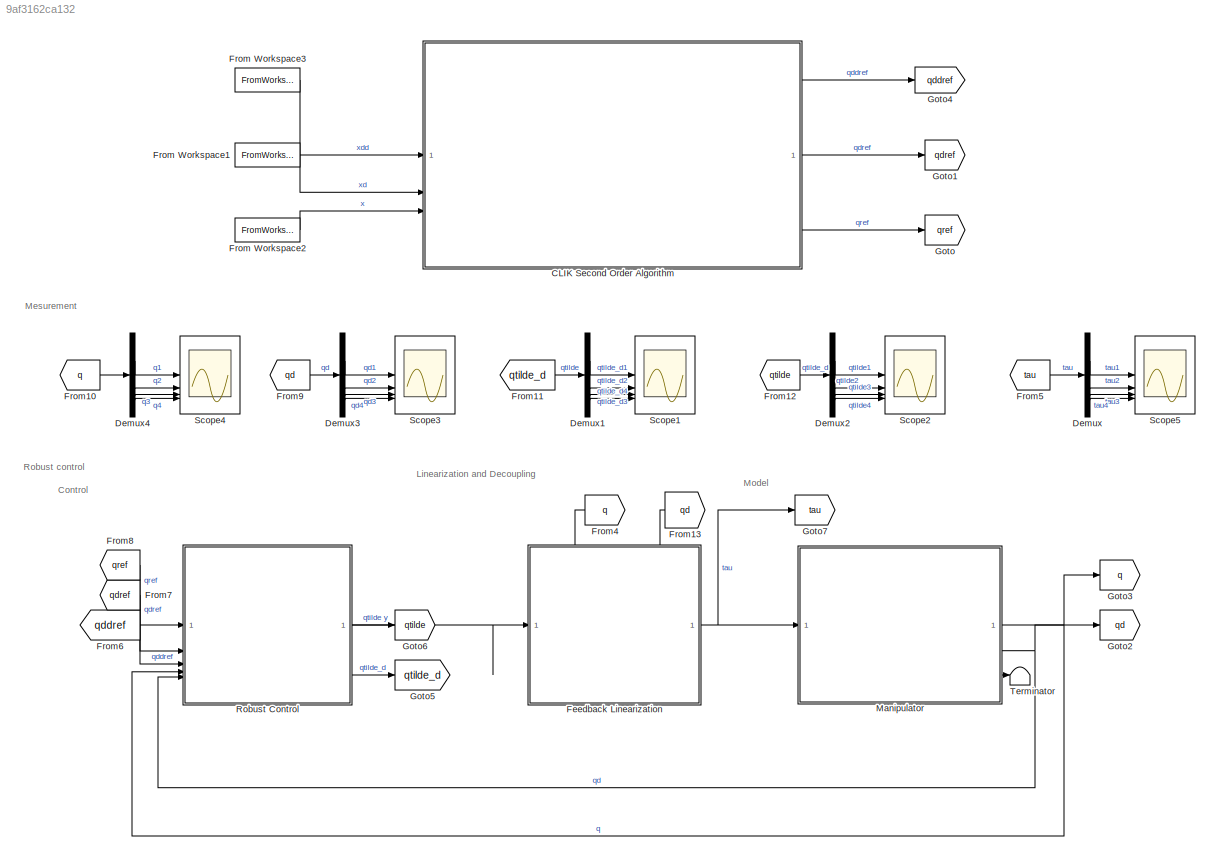
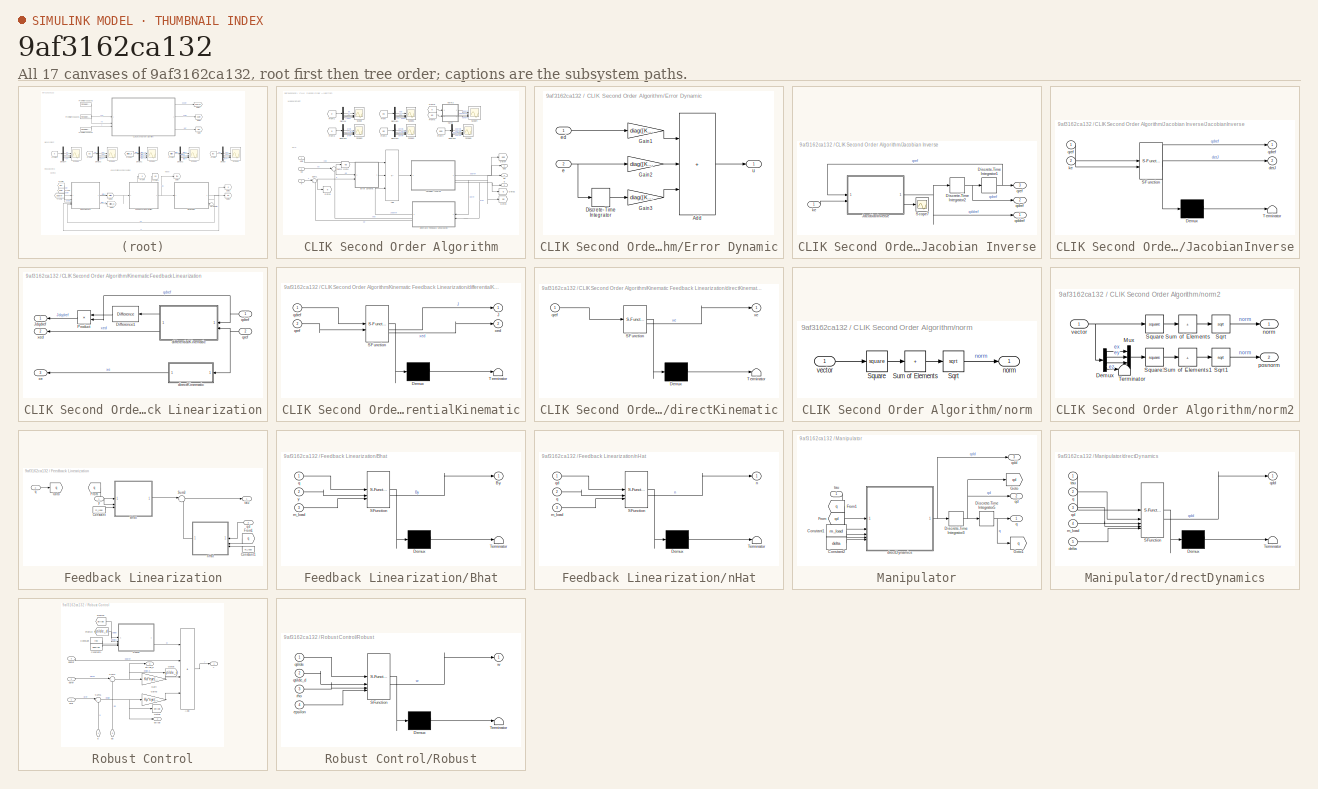
[diagram: thumbnail index - all 17 canvases of the model, root first then tree order]
MODEL slx_9af3162ca132
KIND model
CONFIG AbsTol = auto
CONFIG EnableMultiTasking = off
CONFIG FixedStep = auto
CONFIG MaxStep = auto
CONFIG MinStep = auto
CONFIG RelTol = 1e-3
CONFIG SampleTimeConstraint = Unconstrained
CONFIG SolverName = VariableStepAuto
CONFIG StartTime = 0.0
CONFIG StopTime = time(end)
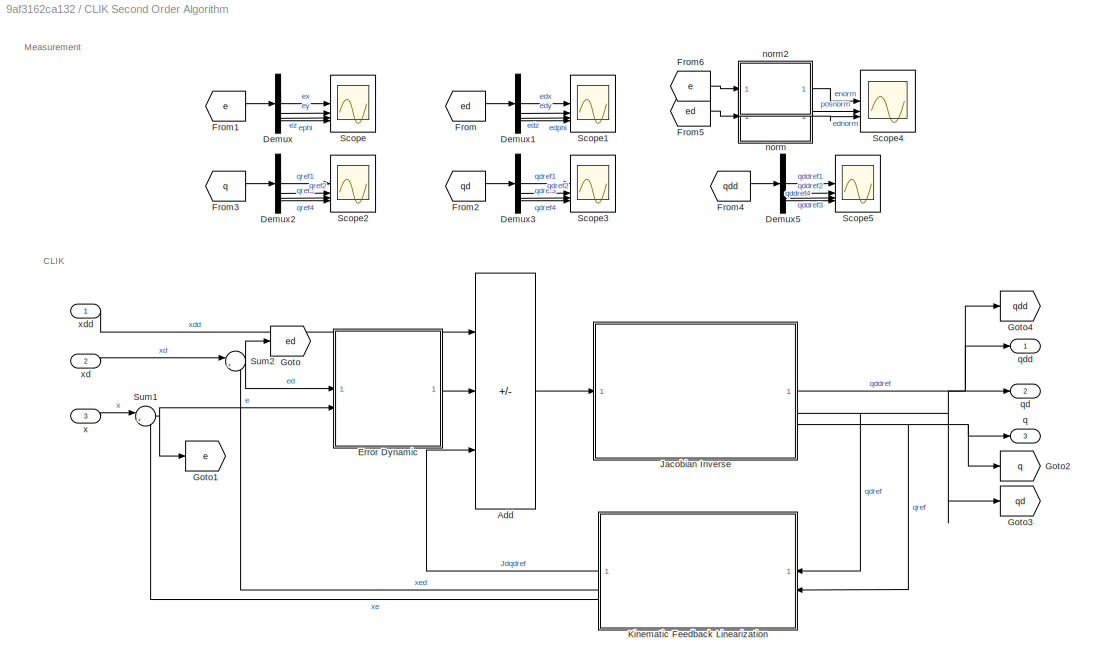
BLOCK [SubSystem] CLIK Second Order Algorithm
BLOCK [Sum] CLIK Second Order Algorithm/Add
  IconShape = rectangular
  Inputs = ++-
BLOCK [Demux] CLIK Second Order Algorithm/Demux
BLOCK [Demux] CLIK Second Order Algorithm/Demux1
BLOCK [Demux] CLIK Second Order Algorithm/Demux2
BLOCK [Demux] CLIK Second Order Algorithm/Demux3
BLOCK [Demux] CLIK Second Order Algorithm/Demux5
BLOCK [SubSystem] CLIK Second Order Algorithm/Error Dynamic
BLOCK [Sum] CLIK Second Order Algorithm/Error Dynamic/Add
  IconShape = rectangular
  Inputs = +++
BLOCK [DiscreteIntegrator] CLIK Second Order Algorithm/Error Dynamic/Discrete-Time Integrator
  ICPrevOutput = DiscIntNeverNeededParam
  ICPrevScaledInput = DiscIntNeverNeededParam
  InitialConditionSetting = Auto
  SampleTime = 0.001
BLOCK [Gain] CLIK Second Order Algorithm/Error Dynamic/Gain1
  Gain = diag([Kd1, Kd2, Kd3, Kd4])
  Multiplication = Matrix(K*u)
BLOCK [Gain] CLIK Second Order Algorithm/Error Dynamic/Gain2
  Gain = diag([Kp1, Kp2, Kp3, Kp4])
  Multiplication = Matrix(K*u)
BLOCK [Gain] CLIK Second Order Algorithm/Error Dynamic/Gain3
  Gain = diag([Ki, Ki, Ki, Ki])
  Multiplication = Matrix(K*u)
BLOCK [Inport] CLIK Second Order Algorithm/Error Dynamic/e
  Port = 2
BLOCK [Inport] CLIK Second Order Algorithm/Error Dynamic/ed
BLOCK [Outport] CLIK Second Order Algorithm/Error Dynamic/u
BLOCK [From] CLIK Second Order Algorithm/From
  GotoTag = ed
BLOCK [From] CLIK Second Order Algorithm/From1
  GotoTag = e
BLOCK [From] CLIK Second Order Algorithm/From2
  GotoTag = qd
BLOCK [From] CLIK Second Order Algorithm/From3
  GotoTag = q
BLOCK [From] CLIK Second Order Algorithm/From4
  GotoTag = qdd
BLOCK [From] CLIK Second Order Algorithm/From5
  GotoTag = ed
BLOCK [From] CLIK Second Order Algorithm/From6
  GotoTag = e
BLOCK [Goto] CLIK Second Order Algorithm/Goto
  GotoTag = ed
BLOCK [Goto] CLIK Second Order Algorithm/Goto1
  GotoTag = e
BLOCK [Goto] CLIK Second Order Algorithm/Goto2
  GotoTag = q
BLOCK [Goto] CLIK Second Order Algorithm/Goto3
  GotoTag = qd
BLOCK [Goto] CLIK Second Order Algorithm/Goto4
  GotoTag = qdd
BLOCK [SubSystem] CLIK Second Order Algorithm/Jacobian Inverse
BLOCK [DiscreteIntegrator] CLIK Second Order Algorithm/Jacobian Inverse/Discrete-Time Integrator1
  ICPrevOutput = DiscIntNeverNeededParam
  ICPrevScaledInput = DiscIntNeverNeededParam
  InitialCondition = [-1.5706; 0.7851; 0.5000; -0.7855]
  InitialConditionSetting = Auto
  SampleTime = 0.001
BLOCK [DiscreteIntegrator] CLIK Second Order Algorithm/Jacobian Inverse/Discrete-Time Integrator2
  ICPrevOutput = DiscIntNeverNeededParam
  ICPrevScaledInput = DiscIntNeverNeededParam
  InitialCondition = [0; 0; 0; 0]
  InitialConditionSetting = Auto
  SampleTime = 0.001
BLOCK [SubSystem] CLIK Second Order Algorithm/Jacobian Inverse/JacobianInverse
  ErrorFcn = Stateflow.Translate.translate
  PermitHierarchicalResolution = ExplicitOnly
  SFBlockType = MATLAB Function
  TreatAsAtomicUnit = on
BLOCK [Demux] CLIK Second Order Algorithm/Jacobian Inverse/JacobianInverse/ Demux 
  Outputs = 1
BLOCK [S-Function] CLIK Second Order Algorithm/Jacobian Inverse/JacobianInverse/ SFunction 
  EnableBusSupport = on
  FunctionName = sf_sfun
  PortCounts = [2 3]
  SFcnIsStateOwnerBlock = off
  SFunctionDeploymentMode = off
  Tag = Stateflow S-Function 5
BLOCK [Terminator] CLIK Second Order Algorithm/Jacobian Inverse/JacobianInverse/ Terminator 
BLOCK [Outport] CLIK Second Order Algorithm/Jacobian Inverse/JacobianInverse/detJ
  Port = 2
BLOCK [Inport] CLIK Second Order Algorithm/Jacobian Inverse/JacobianInverse/ke
  Port = 2
BLOCK [Outport] CLIK Second Order Algorithm/Jacobian Inverse/JacobianInverse/qdref
BLOCK [Inport] CLIK Second Order Algorithm/Jacobian Inverse/JacobianInverse/qref
BLOCK [Scope] CLIK Second Order Algorithm/Jacobian Inverse/Scope7
  Floating = off
  NumInputPorts = 1
  ScopeSpecificationString = Simulink.scopes.TimeScopeBlockCfg('CurrentConfiguration', extmgr.ConfigurationSet(extmgr.Configuration('Core','General UI',true),extmgr.Configuration('Core','Source UI',true),extmgr.Configuration('Sources','WiredSimulink',true,'DataLoggingVariableName','ScopeData1'),extmgr.Configuration('Visuals','Time Domain',true,'SerializedDisplays',{struct('MinYLimReal','0.10918','MaxYLimReal','0.26565','YLabe...<+1412ch>
BLOCK [Inport] CLIK Second Order Algorithm/Jacobian Inverse/ke
BLOCK [Outport] CLIK Second Order Algorithm/Jacobian Inverse/qddref
BLOCK [Outport] CLIK Second Order Algorithm/Jacobian Inverse/qdref
  Port = 2
BLOCK [Outport] CLIK Second Order Algorithm/Jacobian Inverse/qref
  Port = 3
BLOCK [SubSystem] CLIK Second Order Algorithm/Kinematic Feedback Linearization
BLOCK [Reference] CLIK Second Order Algorithm/Kinematic Feedback Linearization/Difference1  REF=simulink/Discrete/Difference
  NameLocation = top
  SourceBlock = simulink/Discrete/Difference
  SourceType = Difference
BLOCK [Outport] CLIK Second Order Algorithm/Kinematic Feedback Linearization/Jdqdref
  NameLocation = top
BLOCK [Product] CLIK Second Order Algorithm/Kinematic Feedback Linearization/Product
  Multiplication = Matrix(*)
  NameLocation = top
BLOCK [SubSystem] CLIK Second Order Algorithm/Kinematic Feedback Linearization/differentialKinematic
  ErrorFcn = Stateflow.Translate.translate
  PermitHierarchicalResolution = ExplicitOnly
  SFBlockType = MATLAB Function
  TreatAsAtomicUnit = on
BLOCK [Demux] CLIK Second Order Algorithm/Kinematic Feedback Linearization/differentialKinematic/ Demux 
  Outputs = 1
BLOCK [S-Function] CLIK Second Order Algorithm/Kinematic Feedback Linearization/differentialKinematic/ SFunction 
  EnableBusSupport = on
  FunctionName = sf_sfun
  PortCounts = [2 3]
  SFcnIsStateOwnerBlock = off
  SFunctionDeploymentMode = off
  Tag = Stateflow S-Function 1
BLOCK [Terminator] CLIK Second Order Algorithm/Kinematic Feedback Linearization/differentialKinematic/ Terminator 
BLOCK [Outport] CLIK Second Order Algorithm/Kinematic Feedback Linearization/differentialKinematic/J
BLOCK [Inport] CLIK Second Order Algorithm/Kinematic Feedback Linearization/differentialKinematic/qdref
BLOCK [Inport] CLIK Second Order Algorithm/Kinematic Feedback Linearization/differentialKinematic/qref
  Port = 2
BLOCK [Outport] CLIK Second Order Algorithm/Kinematic Feedback Linearization/differentialKinematic/xed
  Port = 2
BLOCK [SubSystem] CLIK Second Order Algorithm/Kinematic Feedback Linearization/directKinematic
  ErrorFcn = Stateflow.Translate.translate
  NameLocation = top
  PermitHierarchicalResolution = ExplicitOnly
  SFBlockType = MATLAB Function
  TreatAsAtomicUnit = on
BLOCK [Demux] CLIK Second Order Algorithm/Kinematic Feedback Linearization/directKinematic/ Demux 
  Outputs = 1
BLOCK [S-Function] CLIK Second Order Algorithm/Kinematic Feedback Linearization/directKinematic/ SFunction 
  EnableBusSupport = on
  FunctionName = sf_sfun
  PortCounts = [1 2]
  SFcnIsStateOwnerBlock = off
  SFunctionDeploymentMode = off
  Tag = Stateflow S-Function 2
BLOCK [Terminator] CLIK Second Order Algorithm/Kinematic Feedback Linearization/directKinematic/ Terminator 
BLOCK [Inport] CLIK Second Order Algorithm/Kinematic Feedback Linearization/directKinematic/qref
BLOCK [Outport] CLIK Second Order Algorithm/Kinematic Feedback Linearization/directKinematic/xe
BLOCK [Inport] CLIK Second Order Algorithm/Kinematic Feedback Linearization/qdref
BLOCK [Inport] CLIK Second Order Algorithm/Kinematic Feedback Linearization/qref
  Port = 2
BLOCK [Outport] CLIK Second Order Algorithm/Kinematic Feedback Linearization/xe
  NameLocation = top
  Port = 3
BLOCK [Outport] CLIK Second Order Algorithm/Kinematic Feedback Linearization/xed
  NameLocation = top
  Port = 2
BLOCK [Scope] CLIK Second Order Algorithm/Scope
  Floating = off
  NumInputPorts = 4
  ScopeSpecificationString = Simulink.scopes.TimeScopeBlockCfg('CurrentConfiguration', extmgr.ConfigurationSet(extmgr.Configuration('Core','General UI',true),extmgr.Configuration('Core','Source UI',true),extmgr.Configuration('Sources','WiredSimulink',true,'DataLoggingVariableName','ScopeData2'),extmgr.Configuration('Visuals','Time Domain',true,'SerializedDisplays',{struct('MinYLimReal','-0.00084','MaxYLimReal','0.00036','YLab...<+3434ch>
BLOCK [Scope] CLIK Second Order Algorithm/Scope1
  Floating = off
  NumInputPorts = 4
  ScopeSpecificationString = Simulink.scopes.TimeScopeBlockCfg('CurrentConfiguration', extmgr.ConfigurationSet(extmgr.Configuration('Core','General UI',true),extmgr.Configuration('Core','Source UI',true),extmgr.Configuration('Sources','WiredSimulink',true,'DataLoggingVariableName','ScopeData3'),extmgr.Configuration('Visuals','Time Domain',true,'SerializedDisplays',{struct('MinYLimReal','-0.00136','MaxYLimReal','0.00163','YLab...<+3434ch>
BLOCK [Scope] CLIK Second Order Algorithm/Scope2
  Floating = off
  NumInputPorts = 4
  ScopeSpecificationString = Simulink.scopes.TimeScopeBlockCfg('CurrentConfiguration', extmgr.ConfigurationSet(extmgr.Configuration('Core','General UI',true),extmgr.Configuration('Core','Source UI',true),extmgr.Configuration('Sources','WiredSimulink',true,'DataLoggingVariableName','ScopeData4'),extmgr.Configuration('Visuals','Time Domain',true,'SerializedDisplays',{struct('MinYLimReal','-2.45485','MaxYLimReal','6.3812','YLabe...<+1413ch>
BLOCK [Scope] CLIK Second Order Algorithm/Scope3
  Floating = off
  NumInputPorts = 4
  ScopeSpecificationString = Simulink.scopes.TimeScopeBlockCfg('CurrentConfiguration', extmgr.ConfigurationSet(extmgr.Configuration('Core','General UI',true),extmgr.Configuration('Core','Source UI',true),extmgr.Configuration('Sources','WiredSimulink',true,'DataLoggingVariableName','ScopeData5'),extmgr.Configuration('Visuals','Time Domain',true,'SerializedDisplays',{struct('MinYLimReal','-1.0209','MaxYLimReal','1.11828','YLabe...<+1423ch>
BLOCK [Scope] CLIK Second Order Algorithm/Scope4
  Floating = off
  NumInputPorts = 3
  ScopeSpecificationString = Simulink.scopes.TimeScopeBlockCfg('CurrentConfiguration', extmgr.ConfigurationSet(extmgr.Configuration('Core','General UI',true),extmgr.Configuration('Core','Source UI',true),extmgr.Configuration('Sources','WiredSimulink',true,'DataLoggingVariableName','ScopeData1'),extmgr.Configuration('Visuals','Time Domain',true,'SerializedDisplays',{struct('MinYLimReal','-0.13132','MaxYLimReal','1.18187','YLab...<+1485ch>
BLOCK [Scope] CLIK Second Order Algorithm/Scope5
  Floating = off
  NumInputPorts = 4
  ScopeSpecificationString = Simulink.scopes.TimeScopeBlockCfg('CurrentConfiguration', extmgr.ConfigurationSet(extmgr.Configuration('Core','General UI',true),extmgr.Configuration('Core','Source UI',true),extmgr.Configuration('Sources','WiredSimulink',true,'DataLoggingVariableName','ScopeData7'),extmgr.Configuration('Visuals','Time Domain',true,'SerializedDisplays',{struct('MinYLimReal','-1.9346','MaxYLimReal','2.62421','YLabe...<+1448ch>
BLOCK [Sum] CLIK Second Order Algorithm/Sum1
  Inputs = |+-
BLOCK [Sum] CLIK Second Order Algorithm/Sum2
  Inputs = |+-
BLOCK [SubSystem] CLIK Second Order Algorithm/norm
BLOCK [Sqrt] CLIK Second Order Algorithm/norm/Sqrt
BLOCK [Math] CLIK Second Order Algorithm/norm/Square
  Operator = square
BLOCK [Sum] CLIK Second Order Algorithm/norm/Sum of Elements
  IconShape = rectangular
  Inputs = +
BLOCK [Outport] CLIK Second Order Algorithm/norm/norm
BLOCK [Inport] CLIK Second Order Algorithm/norm/vector
BLOCK [SubSystem] CLIK Second Order Algorithm/norm2
BLOCK [Demux] CLIK Second Order Algorithm/norm2/Demux
BLOCK [Mux] CLIK Second Order Algorithm/norm2/Mux
  DisplayOption = bar
  Inputs = 3
BLOCK [Sqrt] CLIK Second Order Algorithm/norm2/Sqrt
BLOCK [Sqrt] CLIK Second Order Algorithm/norm2/Sqrt1
BLOCK [Math] CLIK Second Order Algorithm/norm2/Square
  Operator = square
BLOCK [Math] CLIK Second Order Algorithm/norm2/Square1
  Operator = square
BLOCK [Sum] CLIK Second Order Algorithm/norm2/Sum of Elements
  IconShape = rectangular
  Inputs = +
BLOCK [Sum] CLIK Second Order Algorithm/norm2/Sum of Elements1
  IconShape = rectangular
  Inputs = +
BLOCK [Terminator] CLIK Second Order Algorithm/norm2/Terminator
BLOCK [Outport] CLIK Second Order Algorithm/norm2/norm
BLOCK [Outport] CLIK Second Order Algorithm/norm2/posnorm
  Port = 2
BLOCK [Inport] CLIK Second Order Algorithm/norm2/vector
BLOCK [Outport] CLIK Second Order Algorithm/q
  Port = 3
BLOCK [Outport] CLIK Second Order Algorithm/qd
  Port = 2
BLOCK [Outport] CLIK Second Order Algorithm/qdd
BLOCK [Inport] CLIK Second Order Algorithm/x
  Port = 3
BLOCK [Inport] CLIK Second Order Algorithm/xd
  Port = 2
BLOCK [Inport] CLIK Second Order Algorithm/xdd
BLOCK [Demux] Demux
BLOCK [Demux] Demux1
BLOCK [Demux] Demux2
BLOCK [Demux] Demux3
BLOCK [Demux] Demux4
BLOCK [SubSystem] Feedback Linearization
  PortSchema = {"entries":[{"content":{"sides":[{"content":{"connectorIds":["In1"]},"type":"ConnectorPlacement.EquallySpacedRectSide","uuid":"271cc0a6-b732-4626-ad15-944ba501bea2"},{"content":{"connectorIds":["Out1"],"side":"RIGHT"},"type":"ConnectorPlacement.EquallySpacedRectSide","uuid":"860ec51b-c9e7-4b7b-ae65-2fc3300d48f6"},{"content":{"connectorIds":["In2","In3"],"side":"TOP"},"type":"ConnectorPlacement.Equ...<+377ch>
BLOCK [SubSystem] Feedback Linearization/Bhat
  ErrorFcn = Stateflow.Translate.translate
  PermitHierarchicalResolution = ExplicitOnly
  SFBlockType = MATLAB Function
  TreatAsAtomicUnit = on
BLOCK [Demux] Feedback Linearization/Bhat/ Demux 
  Outputs = 1
BLOCK [S-Function] Feedback Linearization/Bhat/ SFunction 
  EnableBusSupport = on
  FunctionName = sf_sfun
  PortCounts = [3 2]
  SFcnIsStateOwnerBlock = off
  SFunctionDeploymentMode = off
  Tag = Stateflow S-Function 4
BLOCK [Terminator] Feedback Linearization/Bhat/ Terminator 
BLOCK [Outport] Feedback Linearization/Bhat/By
BLOCK [Inport] Feedback Linearization/Bhat/m_load
  Port = 3
BLOCK [Inport] Feedback Linearization/Bhat/q
BLOCK [Inport] Feedback Linearization/Bhat/y
  Port = 2
BLOCK [Constant] Feedback Linearization/Constant
  Value = m_load
BLOCK [Constant] Feedback Linearization/Constant1
  NameLocation = top
  Value = m_load
BLOCK [From] Feedback Linearization/From
  GotoTag = q
BLOCK [From] Feedback Linearization/From1
  GotoTag = q
  NameLocation = top
BLOCK [Goto] Feedback Linearization/Goto
  GotoTag = q
BLOCK [Sum] Feedback Linearization/Sum3
  Inputs = |++
BLOCK [SubSystem] Feedback Linearization/nHat
  ErrorFcn = Stateflow.Translate.translate
  NameLocation = top
  PermitHierarchicalResolution = ExplicitOnly
  SFBlockType = MATLAB Function
  TreatAsAtomicUnit = on
BLOCK [Demux] Feedback Linearization/nHat/ Demux 
  Outputs = 1
BLOCK [S-Function] Feedback Linearization/nHat/ SFunction 
  EnableBusSupport = on
  FunctionName = sf_sfun
  PortCounts = [3 2]
  SFcnIsStateOwnerBlock = off
  SFunctionDeploymentMode = off
  Tag = Stateflow S-Function 3
BLOCK [Terminator] Feedback Linearization/nHat/ Terminator 
BLOCK [Inport] Feedback Linearization/nHat/m_load
  Port = 3
BLOCK [Outport] Feedback Linearization/nHat/n
BLOCK [Inport] Feedback Linearization/nHat/q
  Port = 2
BLOCK [Inport] Feedback Linearization/nHat/qd
BLOCK [Inport] Feedback Linearization/q
  Port = 2
BLOCK [Inport] Feedback Linearization/qd
  Port = 3
BLOCK [Outport] Feedback Linearization/tau
BLOCK [Inport] Feedback Linearization/y
BLOCK [FromWorkspace] From Workspace1
  VariableName = timesample_dot
BLOCK [FromWorkspace] From Workspace2
  VariableName = timesample
BLOCK [FromWorkspace] From Workspace3
  VariableName = timesample_ddot
BLOCK [From] From10
  GotoTag = q
BLOCK [From] From11
  GotoTag = qtilde_d
BLOCK [From] From12
  GotoTag = qtilde
BLOCK [From] From13
  GotoTag = qd
BLOCK [From] From4
  GotoTag = q
BLOCK [From] From5
  GotoTag = tau
BLOCK [From] From6
  GotoTag = qddref
BLOCK [From] From7
  GotoTag = qdref
BLOCK [From] From8
  GotoTag = qref
BLOCK [From] From9
  GotoTag = qd
BLOCK [Goto] Goto
  GotoTag = qref
BLOCK [Goto] Goto1
  GotoTag = qdref
BLOCK [Goto] Goto2
  GotoTag = qd
BLOCK [Goto] Goto3
  GotoTag = q
BLOCK [Goto] Goto4
  GotoTag = qddref
BLOCK [Goto] Goto5
  GotoTag = qtilde_d
BLOCK [Goto] Goto6
  GotoTag = qtilde
BLOCK [Goto] Goto7
  GotoTag = tau
BLOCK [SubSystem] Manipulator
BLOCK [Constant] Manipulator/Constant1
  Value = m_load
BLOCK [Constant] Manipulator/Constant2
  Value = delta
BLOCK [DiscreteIntegrator] Manipulator/Discrete-Time Integrator3
  ICPrevOutput = DiscIntNeverNeededParam
  ICPrevScaledInput = DiscIntNeverNeededParam
  InitialCondition = [0; 0; 0; 0]
  InitialConditionSetting = Auto
  SampleTime = 0.001
BLOCK [DiscreteIntegrator] Manipulator/Discrete-Time Integrator5
  ICPrevOutput = DiscIntNeverNeededParam
  ICPrevScaledInput = DiscIntNeverNeededParam
  InitialCondition = [-1.5706; 0.7851; 0.5000; -0.7855]
  InitialConditionSetting = Auto
  SampleTime = 0.001
BLOCK [From] Manipulator/From
  GotoTag = qd
BLOCK [From] Manipulator/From1
  GotoTag = q
BLOCK [Goto] Manipulator/Goto
  GotoTag = qd
BLOCK [Goto] Manipulator/Goto1
  GotoTag = q
BLOCK [SubSystem] Manipulator/drectDynamics
  ErrorFcn = Stateflow.Translate.translate
  PermitHierarchicalResolution = ExplicitOnly
  SFBlockType = MATLAB Function
  TreatAsAtomicUnit = on
BLOCK [Demux] Manipulator/drectDynamics/ Demux 
  Outputs = 1
BLOCK [S-Function] Manipulator/drectDynamics/ SFunction 
  EnableBusSupport = on
  FunctionName = sf_sfun
  PortCounts = [5 2]
  SFcnIsStateOwnerBlock = off
  SFunctionDeploymentMode = off
  Tag = Stateflow S-Function 6
BLOCK [Terminator] Manipulator/drectDynamics/ Terminator 
BLOCK [Inport] Manipulator/drectDynamics/delta
  Port = 5
BLOCK [Inport] Manipulator/drectDynamics/m_load
  Port = 4
BLOCK [Inport] Manipulator/drectDynamics/q
  Port = 2
BLOCK [Inport] Manipulator/drectDynamics/qd
  Port = 3
BLOCK [Outport] Manipulator/drectDynamics/qdd
BLOCK [Inport] Manipulator/drectDynamics/tau
BLOCK [Outport] Manipulator/q
BLOCK [Outport] Manipulator/qd
  Port = 2
BLOCK [Outport] Manipulator/qdd
  Port = 3
BLOCK [Inport] Manipulator/tau
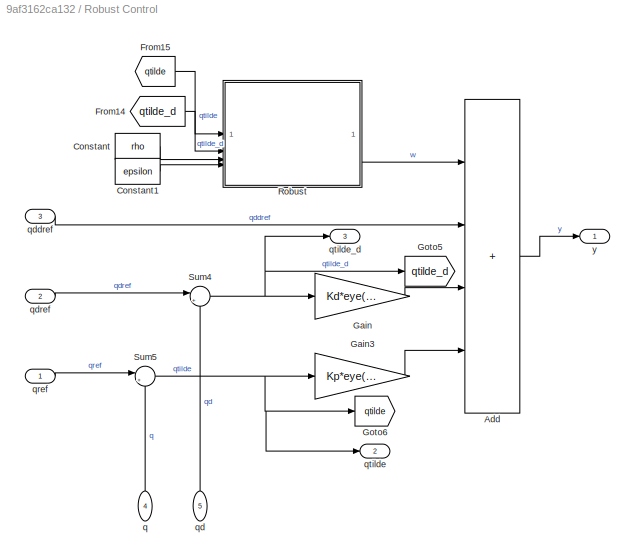
BLOCK [SubSystem] Robust Control
BLOCK [Sum] Robust Control/Add
  IconShape = rectangular
  Inputs = ++++
BLOCK [Constant] Robust Control/Constant
  Value = rho
BLOCK [Constant] Robust Control/Constant1
  Value = epsilon
BLOCK [From] Robust Control/From14
  GotoTag = qtilde_d
BLOCK [From] Robust Control/From15
  GotoTag = qtilde
BLOCK [Gain] Robust Control/Gain
  Gain = Kd*eye(4)
  Multiplication = Matrix(K*u)
BLOCK [Gain] Robust Control/Gain3
  Gain = Kp*eye(4)
  Multiplication = Matrix(K*u)
BLOCK [Goto] Robust Control/Goto5
  GotoTag = qtilde_d
BLOCK [Goto] Robust Control/Goto6
  GotoTag = qtilde
BLOCK [SubSystem] Robust Control/Robust
  ErrorFcn = Stateflow.Translate.translate
  PermitHierarchicalResolution = ExplicitOnly
  SFBlockType = MATLAB Function
  TreatAsAtomicUnit = on
BLOCK [Demux] Robust Control/Robust/ Demux 
  Outputs = 1
BLOCK [S-Function] Robust Control/Robust/ SFunction 
  EnableBusSupport = on
  FunctionName = sf_sfun
  PortCounts = [4 2]
  SFcnIsStateOwnerBlock = off
  SFunctionDeploymentMode = off
  Tag = Stateflow S-Function 7
BLOCK [Terminator] Robust Control/Robust/ Terminator 
BLOCK [Inport] Robust Control/Robust/epsilon
  Port = 4
BLOCK [Inport] Robust Control/Robust/qtilde
BLOCK [Inport] Robust Control/Robust/qtilde_d
  Port = 2
BLOCK [Inport] Robust Control/Robust/rho
  Port = 3
BLOCK [Outport] Robust Control/Robust/w
BLOCK [Sum] Robust Control/Sum4
  Inputs = |+-
BLOCK [Sum] Robust Control/Sum5
  Inputs = |+-
BLOCK [Inport] Robust Control/q
  NameLocation = right
  Port = 4
BLOCK [Inport] Robust Control/qd
  NameLocation = right
  Port = 5
BLOCK [Inport] Robust Control/qddref
  Port = 3
BLOCK [Inport] Robust Control/qdref
  Port = 2
BLOCK [Inport] Robust Control/qref
BLOCK [Outport] Robust Control/qtilde
  Port = 2
BLOCK [Outport] Robust Control/qtilde_d
  Port = 3
BLOCK [Outport] Robust Control/y
BLOCK [Scope] Scope1
  Floating = off
  NumInputPorts = 4
  ScopeSpecificationString = Simulink.scopes.TimeScopeBlockCfg('CurrentConfiguration', extmgr.ConfigurationSet(extmgr.Configuration('Core','General UI',true),extmgr.Configuration('Core','Source UI',true),extmgr.Configuration('Sources','WiredSimulink',true,'DataLoggingVariableName','ScopeData1'),extmgr.Configuration('Visuals','Time Domain',true,'SerializedDisplays',{struct('MinYLimReal','-0.02136','MaxYLimReal','0.00367','YLab...<+3422ch>
BLOCK [Scope] Scope2
  Floating = off
  NumInputPorts = 4
  ScopeSpecificationString = Simulink.scopes.TimeScopeBlockCfg('CurrentConfiguration', extmgr.ConfigurationSet(extmgr.Configuration('Core','General UI',true),extmgr.Configuration('Core','Source UI',true),extmgr.Configuration('Sources','WiredSimulink',true,'DataLoggingVariableName','ScopeData2'),extmgr.Configuration('Visuals','Time Domain',true,'SerializedDisplays',{struct('MinYLimReal','-0.000045','MaxYLimReal','0.000026','YL...<+3428ch>
BLOCK [Scope] Scope3
  Floating = off
  NumInputPorts = 4
  ScopeSpecificationString = Simulink.scopes.TimeScopeBlockCfg('CurrentConfiguration', extmgr.ConfigurationSet(extmgr.Configuration('Core','General UI',true),extmgr.Configuration('Core','Source UI',true),extmgr.Configuration('Sources','WiredSimulink',true,'DataLoggingVariableName','ScopeData3'),extmgr.Configuration('Visuals','Time Domain',true,'SerializedDisplays',{struct('MinYLimReal','-0.12674','MaxYLimReal','1.01893','YLab...<+3405ch>
BLOCK [Scope] Scope4
  Floating = off
  NumInputPorts = 4
  ScopeSpecificationString = Simulink.scopes.TimeScopeBlockCfg('CurrentConfiguration', extmgr.ConfigurationSet(extmgr.Configuration('Core','General UI',true),extmgr.Configuration('Core','Source UI',true),extmgr.Configuration('Sources','WiredSimulink',true,'DataLoggingVariableName','ScopeData4'),extmgr.Configuration('Visuals','Time Domain',true,'SerializedDisplays',{struct('MinYLimReal','-2.35672','MaxYLimReal','5.49806','YLab...<+3399ch>
BLOCK [Scope] Scope5
  Floating = off
  NumInputPorts = 4
  ScopeSpecificationString = Simulink.scopes.TimeScopeBlockCfg('CurrentConfiguration', extmgr.ConfigurationSet(extmgr.Configuration('Core','General UI',true),extmgr.Configuration('Core','Source UI',true),extmgr.Configuration('Sources','WiredSimulink',true,'DataLoggingVariableName','ScopeData1'),extmgr.Configuration('Visuals','Time Domain',true,'SerializedDisplays',{struct('MinYLimReal','-23.56179','MaxYLimReal','26.92327','YL...<+3419ch>
BLOCK [Terminator] Terminator
ANNOTATION (root): Control
ANNOTATION (root): Linearization and Decoupling
ANNOTATION (root): Mesurement
ANNOTATION (root): Model
ANNOTATION (root): Robust control
ANNOTATION CLIK Second Order Algorithm: CLIK
ANNOTATION CLIK Second Order Algorithm: Measurement
LINE CLIK Second Order Algorithm/Add:1 -> CLIK Second Order Algorithm/Jacobian Inverse:1
LINE CLIK Second Order Algorithm/Demux1:1 -> CLIK Second Order Algorithm/Scope1:1
LINE CLIK Second Order Algorithm/Demux1:2 -> CLIK Second Order Algorithm/Scope1:2
LINE CLIK Second Order Algorithm/Demux1:3 -> CLIK Second Order Algorithm/Scope1:3
LINE CLIK Second Order Algorithm/Demux1:4 -> CLIK Second Order Algorithm/Scope1:4
LINE CLIK Second Order Algorithm/Demux2:1 -> CLIK Second Order Algorithm/Scope2:1
LINE CLIK Second Order Algorithm/Demux2:2 -> CLIK Second Order Algorithm/Scope2:2
LINE CLIK Second Order Algorithm/Demux2:3 -> CLIK Second Order Algorithm/Scope2:3
LINE CLIK Second Order Algorithm/Demux2:4 -> CLIK Second Order Algorithm/Scope2:4
LINE CLIK Second Order Algorithm/Demux3:1 -> CLIK Second Order Algorithm/Scope3:1
LINE CLIK Second Order Algorithm/Demux3:2 -> CLIK Second Order Algorithm/Scope3:2
LINE CLIK Second Order Algorithm/Demux3:3 -> CLIK Second Order Algorithm/Scope3:3
LINE CLIK Second Order Algorithm/Demux3:4 -> CLIK Second Order Algorithm/Scope3:4
LINE CLIK Second Order Algorithm/Demux5:1 -> CLIK Second Order Algorithm/Scope5:1
LINE CLIK Second Order Algorithm/Demux5:2 -> CLIK Second Order Algorithm/Scope5:2
LINE CLIK Second Order Algorithm/Demux5:3 -> CLIK Second Order Algorithm/Scope5:3
LINE CLIK Second Order Algorithm/Demux5:4 -> CLIK Second Order Algorithm/Scope5:4
LINE CLIK Second Order Algorithm/Demux:1 -> CLIK Second Order Algorithm/Scope:1
LINE CLIK Second Order Algorithm/Demux:2 -> CLIK Second Order Algorithm/Scope:2
LINE CLIK Second Order Algorithm/Demux:3 -> CLIK Second Order Algorithm/Scope:3
LINE CLIK Second Order Algorithm/Demux:4 -> CLIK Second Order Algorithm/Scope:4
LINE CLIK Second Order Algorithm/Error Dynamic/Add:1 -> CLIK Second Order Algorithm/Error Dynamic/u:1
LINE CLIK Second Order Algorithm/Error Dynamic/Discrete-Time Integrator:1 -> CLIK Second Order Algorithm/Error Dynamic/Gain3:1
LINE CLIK Second Order Algorithm/Error Dynamic/Gain1:1 -> CLIK Second Order Algorithm/Error Dynamic/Add:1
LINE CLIK Second Order Algorithm/Error Dynamic/Gain2:1 -> CLIK Second Order Algorithm/Error Dynamic/Add:2
LINE CLIK Second Order Algorithm/Error Dynamic/Gain3:1 -> CLIK Second Order Algorithm/Error Dynamic/Add:3
NET CLIK Second Order Algorithm/Error Dynamic/e:1 -> CLIK Second Order Algorithm/Error Dynamic/Discrete-Time Integrator:1, CLIK Second Order Algorithm/Error Dynamic/Gain2:1
LINE CLIK Second Order Algorithm/Error Dynamic/ed:1 -> CLIK Second Order Algorithm/Error Dynamic/Gain1:1
LINE CLIK Second Order Algorithm/Error Dynamic:1 -> CLIK Second Order Algorithm/Add:2
LINE CLIK Second Order Algorithm/From1:1 -> CLIK Second Order Algorithm/Demux:1
LINE CLIK Second Order Algorithm/From2:1 -> CLIK Second Order Algorithm/Demux3:1
LINE CLIK Second Order Algorithm/From3:1 -> CLIK Second Order Algorithm/Demux2:1
LINE CLIK Second Order Algorithm/From4:1 -> CLIK Second Order Algorithm/Demux5:1
LINE CLIK Second Order Algorithm/From5:1 -> CLIK Second Order Algorithm/norm:1
LINE CLIK Second Order Algorithm/From6:1 -> CLIK Second Order Algorithm/norm2:1
LINE CLIK Second Order Algorithm/From:1 -> CLIK Second Order Algorithm/Demux1:1
NET CLIK Second Order Algorithm/Jacobian Inverse/Discrete-Time Integrator1:1 -> CLIK Second Order Algorithm/Jacobian Inverse/JacobianInverse:1, CLIK Second Order Algorithm/Jacobian Inverse/qref:1
NET CLIK Second Order Algorithm/Jacobian Inverse/Discrete-Time Integrator2:1 -> CLIK Second Order Algorithm/Jacobian Inverse/Discrete-Time Integrator1:1, CLIK Second Order Algorithm/Jacobian Inverse/qdref:1
NET CLIK Second Order Algorithm/Jacobian Inverse/JacobianInverse:1 -> CLIK Second Order Algorithm/Jacobian Inverse/Discrete-Time Integrator2:1, CLIK Second Order Algorithm/Jacobian Inverse/qddref:1
LINE CLIK Second Order Algorithm/Jacobian Inverse/JacobianInverse:2 -> CLIK Second Order Algorithm/Jacobian Inverse/Scope7:1
LINE CLIK Second Order Algorithm/Jacobian Inverse/ke:1 -> CLIK Second Order Algorithm/Jacobian Inverse/JacobianInverse:2
NET CLIK Second Order Algorithm/Jacobian Inverse:1 -> CLIK Second Order Algorithm/Goto4:1, CLIK Second Order Algorithm/qdd:1
NET CLIK Second Order Algorithm/Jacobian Inverse:2 -> CLIK Second Order Algorithm/Goto3:1, CLIK Second Order Algorithm/Kinematic Feedback Linearization:1, CLIK Second Order Algorithm/qd:1
NET CLIK Second Order Algorithm/Jacobian Inverse:3 -> CLIK Second Order Algorithm/Goto2:1, CLIK Second Order Algorithm/Kinematic Feedback Linearization:2, CLIK Second Order Algorithm/q:1
LINE CLIK Second Order Algorithm/Kinematic Feedback Linearization/Difference1:1 -> CLIK Second Order Algorithm/Kinematic Feedback Linearization/Product:1
LINE CLIK Second Order Algorithm/Kinematic Feedback Linearization/Product:1 -> CLIK Second Order Algorithm/Kinematic Feedback Linearization/Jdqdref:1
LINE CLIK Second Order Algorithm/Kinematic Feedback Linearization/differentialKinematic:1 -> CLIK Second Order Algorithm/Kinematic Feedback Linearization/Difference1:1
LINE CLIK Second Order Algorithm/Kinematic Feedback Linearization/differentialKinematic:2 -> CLIK Second Order Algorithm/Kinematic Feedback Linearization/xed:1
LINE CLIK Second Order Algorithm/Kinematic Feedback Linearization/directKinematic:1 -> CLIK Second Order Algorithm/Kinematic Feedback Linearization/xe:1
NET CLIK Second Order Algorithm/Kinematic Feedback Linearization/qdref:1 -> CLIK Second Order Algorithm/Kinematic Feedback Linearization/Product:2, CLIK Second Order Algorithm/Kinematic Feedback Linearization/differentialKinematic:1
NET CLIK Second Order Algorithm/Kinematic Feedback Linearization/qref:1 -> CLIK Second Order Algorithm/Kinematic Feedback Linearization/differentialKinematic:2, CLIK Second Order Algorithm/Kinematic Feedback Linearization/directKinematic:1
LINE CLIK Second Order Algorithm/Kinematic Feedback Linearization:1 -> CLIK Second Order Algorithm/Add:3
LINE CLIK Second Order Algorithm/Kinematic Feedback Linearization:2 -> CLIK Second Order Algorithm/Sum2:2
LINE CLIK Second Order Algorithm/Kinematic Feedback Linearization:3 -> CLIK Second Order Algorithm/Sum1:2
NET CLIK Second Order Algorithm/Sum1:1 -> CLIK Second Order Algorithm/Error Dynamic:2, CLIK Second Order Algorithm/Goto1:1
NET CLIK Second Order Algorithm/Sum2:1 -> CLIK Second Order Algorithm/Error Dynamic:1, CLIK Second Order Algorithm/Goto:1
LINE CLIK Second Order Algorithm/norm/Sqrt:1 -> CLIK Second Order Algorithm/norm/norm:1
LINE CLIK Second Order Algorithm/norm/Square:1 -> CLIK Second Order Algorithm/norm/Sum of Elements:1
LINE CLIK Second Order Algorithm/norm/Sum of Elements:1 -> CLIK Second Order Algorithm/norm/Sqrt:1
LINE CLIK Second Order Algorithm/norm/vector:1 -> CLIK Second Order Algorithm/norm/Square:1
LINE CLIK Second Order Algorithm/norm2/Demux:1 -> CLIK Second Order Algorithm/norm2/Mux:1
LINE CLIK Second Order Algorithm/norm2/Demux:2 -> CLIK Second Order Algorithm/norm2/Mux:2
LINE CLIK Second Order Algorithm/norm2/Demux:3 -> CLIK Second Order Algorithm/norm2/Mux:3
LINE CLIK Second Order Algorithm/norm2/Demux:4 -> CLIK Second Order Algorithm/norm2/Terminator:1
LINE CLIK Second Order Algorithm/norm2/Mux:1 -> CLIK Second Order Algorithm/norm2/Square1:1
LINE CLIK Second Order Algorithm/norm2/Sqrt1:1 -> CLIK Second Order Algorithm/norm2/posnorm:1
LINE CLIK Second Order Algorithm/norm2/Sqrt:1 -> CLIK Second Order Algorithm/norm2/norm:1
LINE CLIK Second Order Algorithm/norm2/Square1:1 -> CLIK Second Order Algorithm/norm2/Sum of Elements1:1
LINE CLIK Second Order Algorithm/norm2/Square:1 -> CLIK Second Order Algorithm/norm2/Sum of Elements:1
LINE CLIK Second Order Algorithm/norm2/Sum of Elements1:1 -> CLIK Second Order Algorithm/norm2/Sqrt1:1
LINE CLIK Second Order Algorithm/norm2/Sum of Elements:1 -> CLIK Second Order Algorithm/norm2/Sqrt:1
NET CLIK Second Order Algorithm/norm2/vector:1 -> CLIK Second Order Algorithm/norm2/Demux:1, CLIK Second Order Algorithm/norm2/Square:1
LINE CLIK Second Order Algorithm/norm2:1 -> CLIK Second Order Algorithm/Scope4:1
LINE CLIK Second Order Algorithm/norm2:2 -> CLIK Second Order Algorithm/Scope4:2
LINE CLIK Second Order Algorithm/norm:1 -> CLIK Second Order Algorithm/Scope4:3
LINE CLIK Second Order Algorithm/x:1 -> CLIK Second Order Algorithm/Sum1:1
LINE CLIK Second Order Algorithm/xd:1 -> CLIK Second Order Algorithm/Sum2:1
LINE CLIK Second Order Algorithm/xdd:1 -> CLIK Second Order Algorithm/Add:1
LINE CLIK Second Order Algorithm:1 -> Goto4:1
LINE CLIK Second Order Algorithm:2 -> Goto1:1
LINE CLIK Second Order Algorithm:3 -> Goto:1
LINE Demux1:1 -> Scope1:1
LINE Demux1:2 -> Scope1:2
LINE Demux1:3 -> Scope1:3
LINE Demux1:4 -> Scope1:4
LINE Demux2:1 -> Scope2:1
LINE Demux2:2 -> Scope2:2
LINE Demux2:3 -> Scope2:3
LINE Demux2:4 -> Scope2:4
LINE Demux3:1 -> Scope3:1
LINE Demux3:2 -> Scope3:2
LINE Demux3:3 -> Scope3:3
LINE Demux3:4 -> Scope3:4
LINE Demux4:1 -> Scope4:1
LINE Demux4:2 -> Scope4:2
LINE Demux4:3 -> Scope4:3
LINE Demux4:4 -> Scope4:4
LINE Demux:1 -> Scope5:1
LINE Demux:2 -> Scope5:2
LINE Demux:3 -> Scope5:3
LINE Demux:4 -> Scope5:4
LINE Feedback Linearization/Bhat:1 -> Feedback Linearization/Sum3:1
LINE Feedback Linearization/Constant1:1 -> Feedback Linearization/nHat:3
LINE Feedback Linearization/Constant:1 -> Feedback Linearization/Bhat:3
LINE Feedback Linearization/From1:1 -> Feedback Linearization/nHat:2
LINE Feedback Linearization/From:1 -> Feedback Linearization/Bhat:1
LINE Feedback Linearization/Sum3:1 -> Feedback Linearization/tau:1
LINE Feedback Linearization/nHat:1 -> Feedback Linearization/Sum3:2
LINE Feedback Linearization/q:1 -> Feedback Linearization/Goto:1
LINE Feedback Linearization/qd:1 -> Feedback Linearization/nHat:1
LINE Feedback Linearization/y:1 -> Feedback Linearization/Bhat:2
NET Feedback Linearization:1 -> Goto7:1, Manipulator:1
LINE From Workspace1:1 -> CLIK Second Order Algorithm:2
LINE From Workspace2:1 -> CLIK Second Order Algorithm:3
LINE From Workspace3:1 -> CLIK Second Order Algorithm:1
LINE From10:1 -> Demux4:1
LINE From11:1 -> Demux1:1
LINE From12:1 -> Demux2:1
LINE From13:1 -> Feedback Linearization:3
LINE From4:1 -> Feedback Linearization:2
LINE From5:1 -> Demux:1
LINE From6:1 -> Robust Control:3
LINE From7:1 -> Robust Control:2
LINE From8:1 -> Robust Control:1
LINE From9:1 -> Demux3:1
LINE Manipulator/Constant1:1 -> Manipulator/drectDynamics:4
LINE Manipulator/Constant2:1 -> Manipulator/drectDynamics:5
NET Manipulator/Discrete-Time Integrator3:1 -> Manipulator/Discrete-Time Integrator5:1, Manipulator/Goto:1, Manipulator/qd:1
NET Manipulator/Discrete-Time Integrator5:1 -> Manipulator/Goto1:1, Manipulator/q:1
LINE Manipulator/From1:1 -> Manipulator/drectDynamics:2
LINE Manipulator/From:1 -> Manipulator/drectDynamics:3
NET Manipulator/drectDynamics:1 -> Manipulator/Discrete-Time Integrator3:1, Manipulator/qdd:1
LINE Manipulator/tau:1 -> Manipulator/drectDynamics:1
NET Manipulator:1 -> Goto3:1, Robust Control:4
NET Manipulator:2 -> Goto2:1, Robust Control:5
LINE Manipulator:3 -> Terminator:1
LINE Robust Control/Add:1 -> Robust Control/y:1
LINE Robust Control/Constant1:1 -> Robust Control/Robust:4
LINE Robust Control/Constant:1 -> Robust Control/Robust:3
LINE Robust Control/From14:1 -> Robust Control/Robust:2
LINE Robust Control/From15:1 -> Robust Control/Robust:1
LINE Robust Control/Gain3:1 -> Robust Control/Add:4
LINE Robust Control/Gain:1 -> Robust Control/Add:3
LINE Robust Control/Robust:1 -> Robust Control/Add:1
NET Robust Control/Sum4:1 -> Robust Control/Gain:1, Robust Control/Goto5:1, Robust Control/qtilde_d:1
NET Robust Control/Sum5:1 -> Robust Control/Gain3:1, Robust Control/Goto6:1, Robust Control/qtilde:1
LINE Robust Control/q:1 -> Robust Control/Sum5:2
LINE Robust Control/qd:1 -> Robust Control/Sum4:2
LINE Robust Control/qddref:1 -> Robust Control/Add:2
LINE Robust Control/qdref:1 -> Robust Control/Sum4:1
LINE Robust Control/qref:1 -> Robust Control/Sum5:1
LINE Robust Control:1 -> Feedback Linearization:1
LINE Robust Control:2 -> Goto6:1
LINE Robust Control:3 -> Goto5:1
note: NET lines group one-source signal fan-out (src -> all destinations, sorted); 1:1 wires keep LINE
CHART CLIK Second Order Algorithm/Kinematic Feedback Linearization/differentialKinematic states=1 transitions=1
  STATE_LABEL 'eML_blk_kernel()'
  STATE_LABEL 'SCRIPT:\nfunction [J, xed] = Jacobian(qdref, qref)\n\n    % Init the SCARA manipulator parameters\n    a1 = .5; a2 = .5;\n    theta1 = qref(1,:); theta2 = qref(2,:);\n    \n    %% Geometric Jacobian Matrix\n    Ja = [-a1*sin(theta1) - a2*sin(theta1 + theta2), - a2*sin(theta1 + theta2), 0, 0;\n        a1*cos(theta1) + a2*cos(theta1 + theta2), a2*cos(theta1 + theta2), 0, 0;\n        0, 0, -1, 0;\n        1, 1,...<+240ch>'
CHART CLIK Second Order Algorithm/Kinematic Feedback Linearization/directKinematic states=1 transitions=1
  STATE_LABEL 'eML_blk_kernel()'
  STATE_LABEL 'SCRIPT:\nfunction xe = directKinematic(qref)\n    \n    %% Init the SCARA manipulator parameters and Joint variables\n    a1 = .5; a2 = .5; d0 = 1;\n    theta1 = qref(1,:); theta2 = qref(2,:); d3 = qref(3,:); theta4 = qref(4,:);\n\n    %% Forward Kinematics link for the SCARA\n    k = [a1*cos(theta1) + a2*cos(theta1 + theta2);\n        a1*sin(theta1) + a2*sin(theta1 + theta2);\n        d0 - d3;\n        thet...<+41ch>'
CHART Feedback Linearization/nHat states=1 transitions=1
  STATE_LABEL 'eML_blk_kernel()'
  STATE_LABEL 'SCRIPT:\nfunction n = nHat(qd,q,m_load)\n    \n    q1 = q(1,:);\n    q2 = q(2,:);\n    q3 = q(3,:);\n    qd1 = qd(1,:);\n    qd2 = qd(2,:);\n    \n    %% parametri\n    a1 = 0.5;\n    a2 = 0.5;\n    d0 = 1;\n    \n    ml1 = 20;\n    ml2 = 20;\n    ml3 = 10;\n    l1 = 0.25;\n    l2 = 0.25;\n    kr1 = 1;\n    kr2 = 1;\n    kr3 = 50;\n    kr4 = 20;\n    Fm1 =  0.00005;\n    Fm2 =  0.00005;\n    Fm3 = 0.01;\n    Fm4 = 0.005;\n ...<+1624ch>'
CHART Feedback Linearization/Bhat states=1 transitions=1
  STATE_LABEL 'eML_blk_kernel()'
  STATE_LABEL 'SCRIPT:\nfunction By = Bhat(q,y,m_load)\n    \n    q1 = q(1,:);\n    q2 = q(2,:);\n    q3 = q(3,:);\n    q4 = q(4,:);\n    \n    %% parametri\n    a1 = 0.5;\n    a2 = 0.5;\n    d0 = 1;\n    \n    ml1 = 20;\n    ml2 = 20;\n    ml3 = 10;\n    Il1 = 4;\n    Il2 = 4;\n    Il4 = 1;\n    Im1 = 0.01;\n    Im2 = 0.01;\n    Im3 = 0.005;\n    Im4 = 0.001;\n    l1 = 0.25;\n    l2 = 0.25;\n    kr1 = 1;\n    kr2 = 1;\n    kr3 = 50;\n    ...<+1584ch>'
CHART CLIK Second Order Algorithm/Jacobian Inverse/JacobianInverse states=1 transitions=1
  STATE_LABEL 'eML_blk_kernel()'
  STATE_LABEL 'SCRIPT:\nfunction [qdref, detJ] = inverseJacobian(qref, ke) % q = [theta1; theta2]\n\n    % Init the SCARA manipulator parameters\n    a1 = .5; a2 = .5;\n\n    theta1 = qref(1,:); theta2 = qref(2,:);\n    %% Geometric Jacobian Matrix\n    J = [-a1*sin(theta1) - a2*sin(theta1 + theta2), - a2*sin(theta1 + theta2), 0, 0;\n        a1*cos(theta1) + a2*cos(theta1 + theta2), a2*cos(theta1 + theta2), 0, 0;\n       ...<+356ch>'
CHART Manipulator/drectDynamics states=1 transitions=1
  STATE_LABEL 'eML_blk_kernel()'
  STATE_LABEL 'SCRIPT:\nfunction qdd = directDynamics(tau,q,qd,m_load,delta)\n\n%% Needed joint position and velocity\nq1 = q(1,:);\nq2 = q(2,:);\nq3 = q(3,:);\nqd1 = qd(1,:);\nqd2 = qd(2,:);\n\n%% Dynamic Parameters\na1 = 0.5; a2 = 0.5; d0 = 1;\nml1 = 20; ml2 = 20; ml3 = 10;\nIl1 = 4; Il2 = 4; Il4 = 1;\nIm1 = 0.01; Im2 = 0.01; Im3 = 0.005; Im4 = 0.001;\nl1 = 0.25; l2 = 0.25;\nkr1 = 1; kr2 = 1; kr3 = 50; kr4 = 20;\nFm1 =  0.0000...<+2498ch>'
CHART Robust Control/Robust states=1 transitions=1
  STATE_LABEL 'eML_blk_kernel()'
  STATE_LABEL "SCRIPT:\nfunction w = vers(qtilde, qtilde_d, rho, epsilon)\n    \n    D = [zeros(4,4); eye(4)];\n    Q = eye(8);\n    xi = [qtilde; qtilde_d];\n\n    z = D'*Q*xi;\n\n    if norm(z) >= epsilon   \n       w = rho * z / norm(z);\n    else \n        w = rho * z / epsilon;\n    end\n    \nend\n\n"
CHART  states=0 transitions=0
CHART  states=0 transitions=0
CHART  states=0 transitions=0
CHART  states=0 transitions=0
CHART  states=0 transitions=0
CHART  states=0 transitions=0
CHART  states=0 transitions=0
